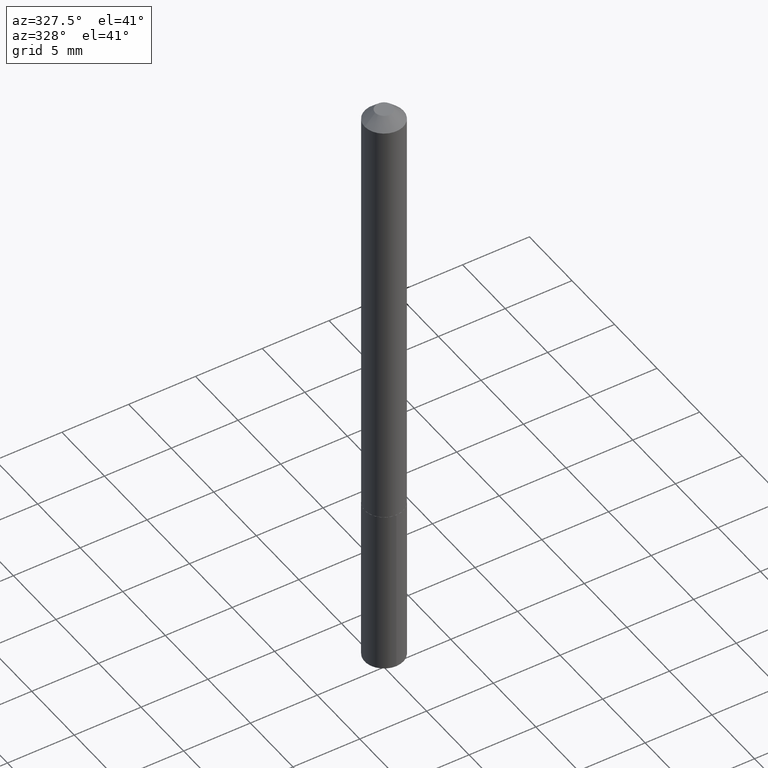
[diagram: clean part render]
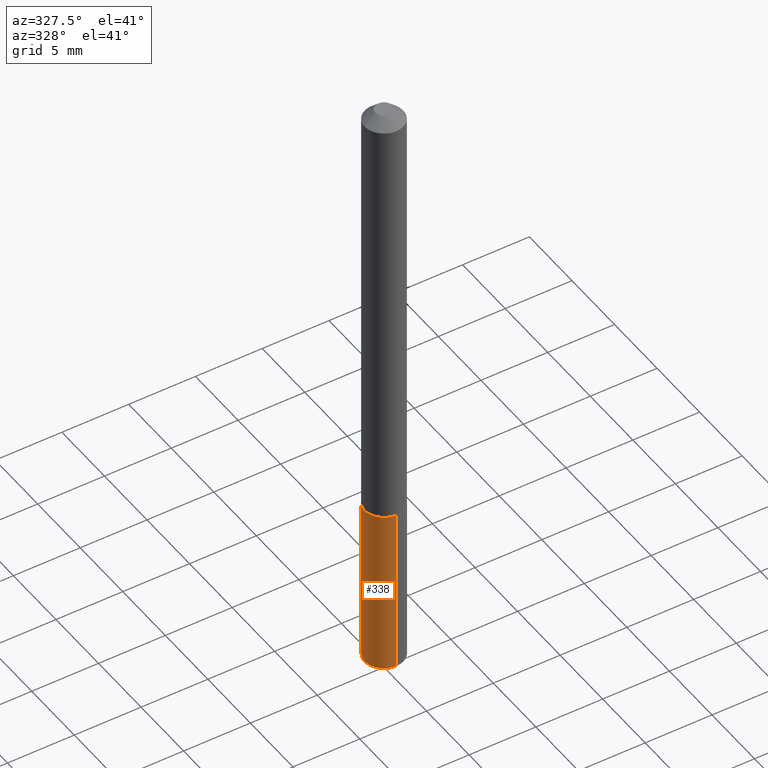
[diagram: same view with one face highlighted and labeled with its STEP entity id]
A machine part, auxiliary view. The second image highlights one B-rep face of the part: STEP entity #338.
In plain terms, the highlighted cylindrical surface (edge-blend (fillet) strip) has radius 1.4503 mm, axis along (-0, 0, 1).
Its self-contained STEP definition (entity closure, byte-faithful):
#8 = DIRECTION ( 'NONE',  ( -2.445529246400039485E-29, 3.491394785015361534E-15, 1.000000000000000000 ) ) ;
#17 = LINE ( 'NONE', #41, #334 ) ;
#28 = DIRECTION ( 'NONE',  ( -6.982962677686265133E-15, -1.000000000000000000, 4.784322230585399479E-15 ) ) ;
#38 = VERTEX_POINT ( 'NONE', #37 ) ;
#37 = CARTESIAN_POINT ( 'NONE',  ( 4.057199021190609736E-16, 0.05709999999999547382, -1.295299999999999896 ) ) ;
#41 = CARTESIAN_POINT ( 'NONE',  ( 4.057199021190487955E-16, 0.05709999999999547382, -1.295299999999999896 ) ) ;
#48 = CARTESIAN_POINT ( 'NONE',  ( -3.987271688958540602E-16, -0.05710000000000452214, -1.295299999999999452 ) ) ;
#50 = CYLINDRICAL_SURFACE ( 'NONE', #116, 0.05709999999999999798 ) ;
#55 = EDGE_CURVE ( 'NONE', #60, #157, #63, .T. ) ;
#60 = VERTEX_POINT ( 'NONE', #288 ) ;
#62 = ORIENTED_EDGE ( 'NONE', *, *, #176, .F. ) ;
#63 = CIRCLE ( 'NONE', #158, 0.05709999999999999798 ) ;
#70 = EDGE_CURVE ( 'NONE', #60, #38, #17, .T. ) ;
#74 = CIRCLE ( 'NONE', #191, 0.05709999999999999798 ) ;
#76 = CARTESIAN_POINT ( 'NONE',  ( 3.167615744651606811E-29, -4.522515778203526217E-15, -1.295299999999999674 ) ) ;
#78 = LINE ( 'NONE', #48, #102 ) ;
#102 = VECTOR ( 'NONE', #328, 39.37007874015748143 ) ;
#103 = DIRECTION ( 'NONE',  ( -2.445529246400039205E-29, 3.491394785015361534E-15, 1.000000000000000000 ) ) ;
#108 = DIRECTION ( 'NONE',  ( -2.445529246400039205E-29, 3.491394785015361534E-15, 1.000000000000000000 ) ) ;
#111 = DIRECTION ( 'NONE',  ( -6.982962677686265133E-15, -1.000000000000000000, 4.784322230585399479E-15 ) ) ;
#113 = ORIENTED_EDGE ( 'NONE', *, *, #70, .F. ) ;
#116 = AXIS2_PLACEMENT_3D ( 'NONE', #76, #103, #225 ) ;
#135 = CARTESIAN_POINT ( 'NONE',  ( 3.167615744651606811E-29, -4.522515778203526217E-15, -1.295299999999999674 ) ) ;
#144 = CARTESIAN_POINT ( 'NONE',  ( -3.987271688958418328E-16, -0.05710000000000623605, -1.792996439155009725 ) ) ;
#146 = CARTESIAN_POINT ( 'NONE',  ( 4.384746942434342202E-29, -6.260170530390042829E-15, -1.792996439155009947 ) ) ;
#157 = VERTEX_POINT ( 'NONE', #144 ) ;
#158 = AXIS2_PLACEMENT_3D ( 'NONE', #146, #108, #28 ) ;
#176 = EDGE_CURVE ( 'NONE', #38, #351, #74, .T. ) ;
#191 = AXIS2_PLACEMENT_3D ( 'NONE', #135, #197, #111 ) ;
#197 = DIRECTION ( 'NONE',  ( -2.445529246400039205E-29, 3.491394785015361534E-15, 1.000000000000000000 ) ) ;
#200 = ORIENTED_EDGE ( 'NONE', *, *, #319, .T. ) ;
#225 = DIRECTION ( 'NONE',  ( -6.982962677686265133E-15, -1.000000000000000000, 4.784322230585399479E-15 ) ) ;
#235 = EDGE_LOOP ( 'NONE', ( #113, #310, #200, #62 ) ) ;
#288 = CARTESIAN_POINT ( 'NONE',  ( 4.057199021190608256E-16, 0.05709999999999371828, -1.792996439155010391 ) ) ;
#310 = ORIENTED_EDGE ( 'NONE', *, *, #55, .T. ) ;
#312 = CARTESIAN_POINT ( 'NONE',  ( -3.987271688958540602E-16, -0.05710000000000452214, -1.295299999999999452 ) ) ;
#319 = EDGE_CURVE ( 'NONE', #157, #351, #78, .T. ) ;
#328 = DIRECTION ( 'NONE',  ( -2.445529246400039485E-29, 3.491394785015361534E-15, 1.000000000000000000 ) ) ;
#334 = VECTOR ( 'NONE', #8, 39.37007874015748143 ) ;
#338 = ADVANCED_FACE ( 'NONE', ( #353 ), #50, .T. ) ;
#351 = VERTEX_POINT ( 'NONE', #312 ) ;
#353 = FACE_OUTER_BOUND ( 'NONE', #235, .T. ) ;